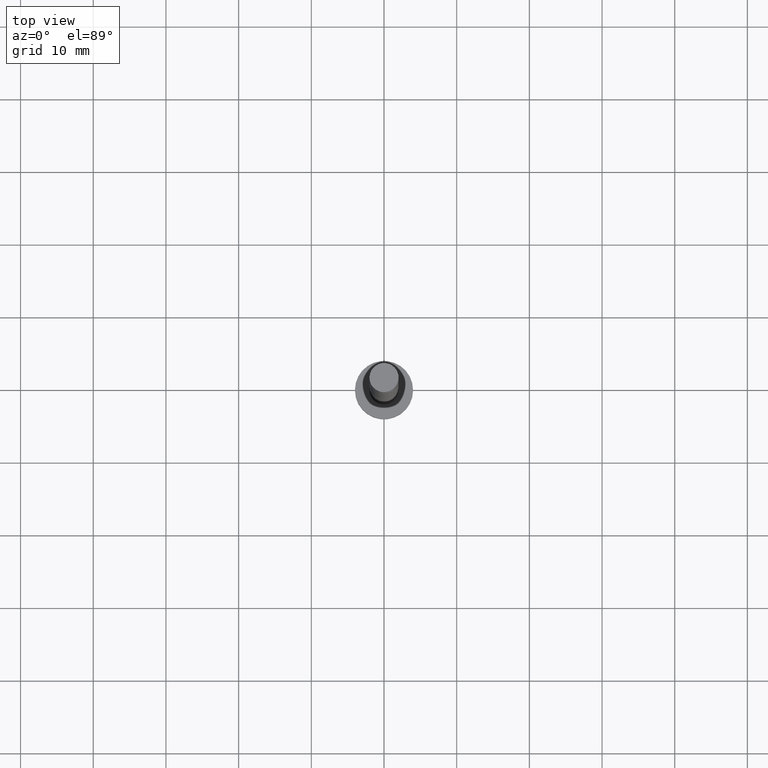
[diagram: clean part render]
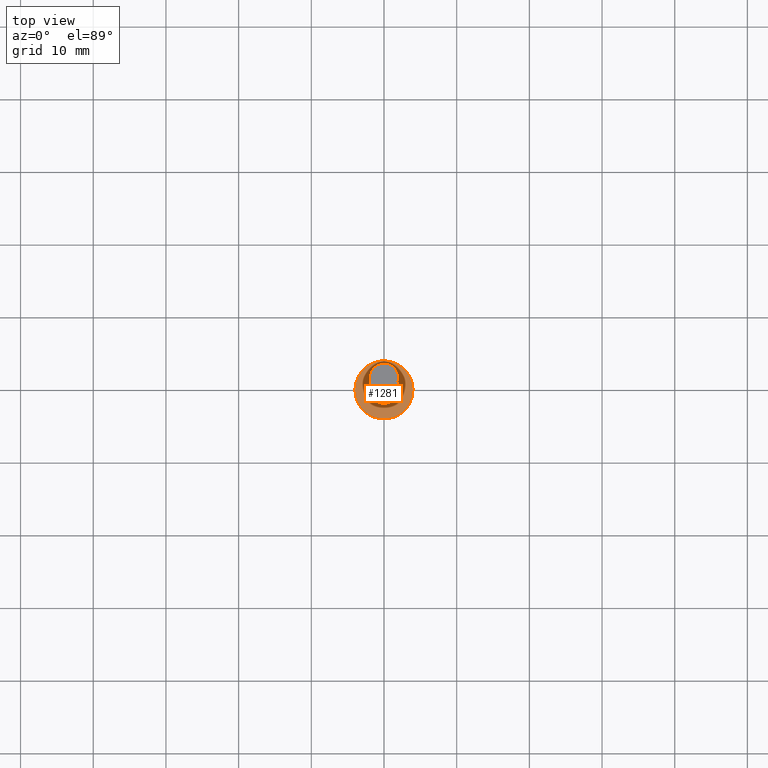
[diagram: same view with one face highlighted and labeled with its STEP entity id]
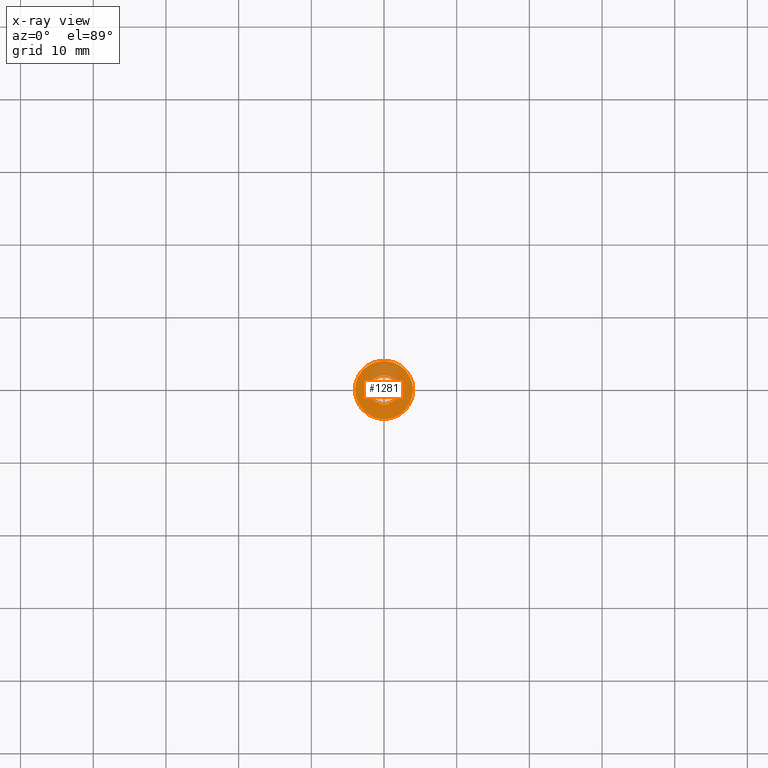
[diagram: x-ray of the same camera — body ghosted, the highlighted face saturated]
A machine part, top view. The second image highlights one B-rep face of the part: STEP entity #1281.
The next image is the same camera in x-ray: the body ghosted, the highlighted face saturated — about 18% of this face is hidden behind the body in this view.
In plain terms, the highlighted planar face has unit normal (0, 0, 1).
Its self-contained STEP definition (entity closure, byte-faithful):
#64 = EDGE_CURVE ( 'NONE', #800, #766, #1409, .T. ) ;
#85 = CARTESIAN_POINT ( 'NONE',  ( 0.000000000000000000, 0.000000000000000000, 3.000000000000000000 ) ) ;
#91 = PLANE ( 'NONE',  #617 ) ;
#113 = DIRECTION ( 'NONE',  ( 0.000000000000000000, 0.000000000000000000, 1.000000000000000000 ) ) ;
#234 = CARTESIAN_POINT ( 'NONE',  ( 0.000000000000000000, 0.000000000000000000, 3.000000000000000000 ) ) ;
#335 = DIRECTION ( 'NONE',  ( 0.000000000000000000, 0.000000000000000000, 1.000000000000000000 ) ) ;
#361 = ORIENTED_EDGE ( 'NONE', *, *, #64, .T. ) ;
#371 = AXIS2_PLACEMENT_3D ( 'NONE', #470, #1401, #1272 ) ;
#445 = FACE_OUTER_BOUND ( 'NONE', #468, .T. ) ;
#468 = EDGE_LOOP ( 'NONE', ( #1468, #361 ) ) ;
#470 = CARTESIAN_POINT ( 'NONE',  ( 0.000000000000000000, 0.000000000000000000, 3.000000000000000000 ) ) ;
#507 = VERTEX_POINT ( 'NONE', #1087 ) ;
#536 = CARTESIAN_POINT ( 'NONE',  ( 2.000000000000000000, 2.449293598294705921E-16, 3.000000000000000000 ) ) ;
#566 = DIRECTION ( 'NONE',  ( 1.000000000000000000, 0.000000000000000000, 0.000000000000000000 ) ) ;
#617 = AXIS2_PLACEMENT_3D ( 'NONE', #667, #335, #1249 ) ;
#647 = ORIENTED_EDGE ( 'NONE', *, *, #830, .F. ) ;
#667 = CARTESIAN_POINT ( 'NONE',  ( 0.000000000000000000, 0.000000000000000000, 3.000000000000000000 ) ) ;
#680 = DIRECTION ( 'NONE',  ( 0.000000000000000000, 0.000000000000000000, 1.000000000000000000 ) ) ;
#766 = VERTEX_POINT ( 'NONE', #1012 ) ;
#800 = VERTEX_POINT ( 'NONE', #1473 ) ;
#830 = EDGE_CURVE ( 'NONE', #507, #1034, #905, .T. ) ;
#867 = EDGE_LOOP ( 'NONE', ( #647, #1192 ) ) ;
#905 = CIRCLE ( 'NONE', #1216, 2.000000000000000000 ) ;
#988 = EDGE_CURVE ( 'NONE', #1034, #507, #1077, .T. ) ;
#1012 = CARTESIAN_POINT ( 'NONE',  ( -4.000000000000000000, 0.000000000000000000, 3.000000000000000000 ) ) ;
#1034 = VERTEX_POINT ( 'NONE', #536 ) ;
#1077 = CIRCLE ( 'NONE', #371, 2.000000000000000000 ) ;
#1079 = DIRECTION ( 'NONE',  ( 0.000000000000000000, 0.000000000000000000, 1.000000000000000000 ) ) ;
#1087 = CARTESIAN_POINT ( 'NONE',  ( -2.000000000000000000, 0.000000000000000000, 3.000000000000000000 ) ) ;
#1126 = DIRECTION ( 'NONE',  ( 1.000000000000000000, 0.000000000000000000, 0.000000000000000000 ) ) ;
#1174 = EDGE_CURVE ( 'NONE', #766, #800, #1292, .T. ) ;
#1192 = ORIENTED_EDGE ( 'NONE', *, *, #988, .F. ) ;
#1213 = CARTESIAN_POINT ( 'NONE',  ( 0.000000000000000000, 0.000000000000000000, 3.000000000000000000 ) ) ;
#1216 = AXIS2_PLACEMENT_3D ( 'NONE', #234, #680, #1126 ) ;
#1249 = DIRECTION ( 'NONE',  ( 1.000000000000000000, 0.000000000000000000, -0.000000000000000000 ) ) ;
#1266 = AXIS2_PLACEMENT_3D ( 'NONE', #85, #1079, #1348 ) ;
#1272 = DIRECTION ( 'NONE',  ( 1.000000000000000000, 0.000000000000000000, 0.000000000000000000 ) ) ;
#1281 = ADVANCED_FACE ( 'NONE', ( #1359, #445 ), #91, .T. ) ;
#1292 = CIRCLE ( 'NONE', #1266, 4.000000000000000000 ) ;
#1337 = AXIS2_PLACEMENT_3D ( 'NONE', #1213, #113, #566 ) ;
#1348 = DIRECTION ( 'NONE',  ( 1.000000000000000000, 0.000000000000000000, 0.000000000000000000 ) ) ;
#1359 = FACE_BOUND ( 'NONE', #867, .T. ) ;
#1401 = DIRECTION ( 'NONE',  ( 0.000000000000000000, 0.000000000000000000, 1.000000000000000000 ) ) ;
#1409 = CIRCLE ( 'NONE', #1337, 4.000000000000000000 ) ;
#1468 = ORIENTED_EDGE ( 'NONE', *, *, #1174, .T. ) ;
#1473 = CARTESIAN_POINT ( 'NONE',  ( 4.000000000000000000, 4.898587196589412829E-16, 3.000000000000000000 ) ) ;